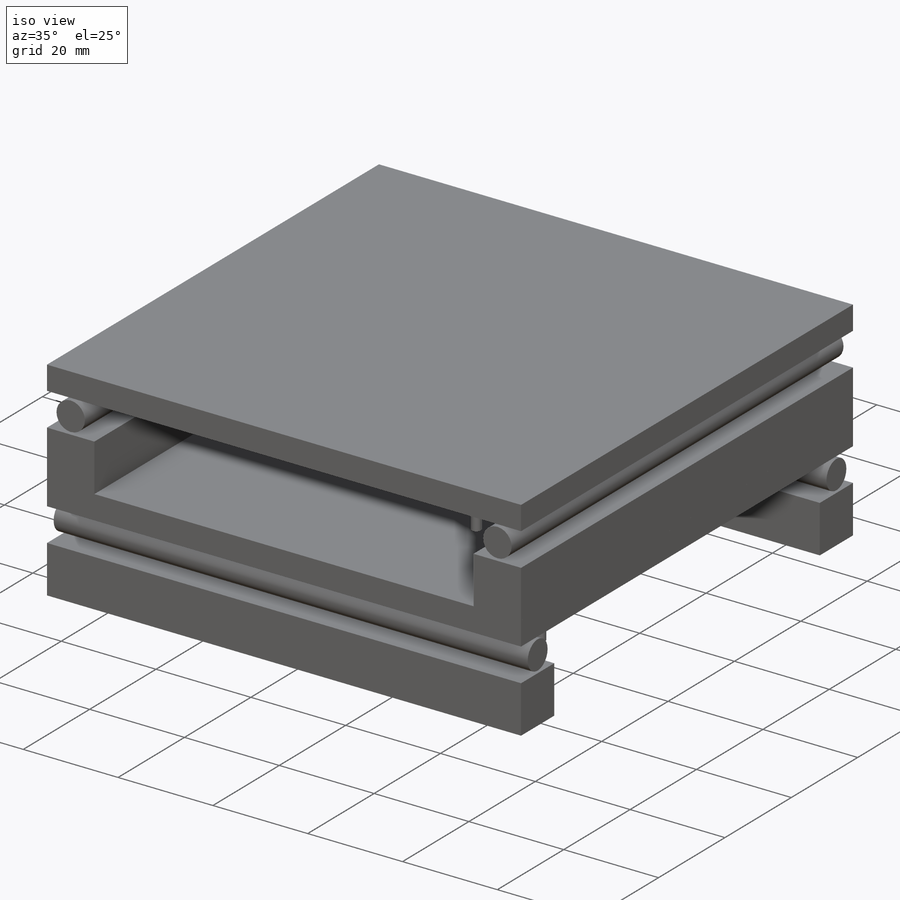
[diagram: iso view]
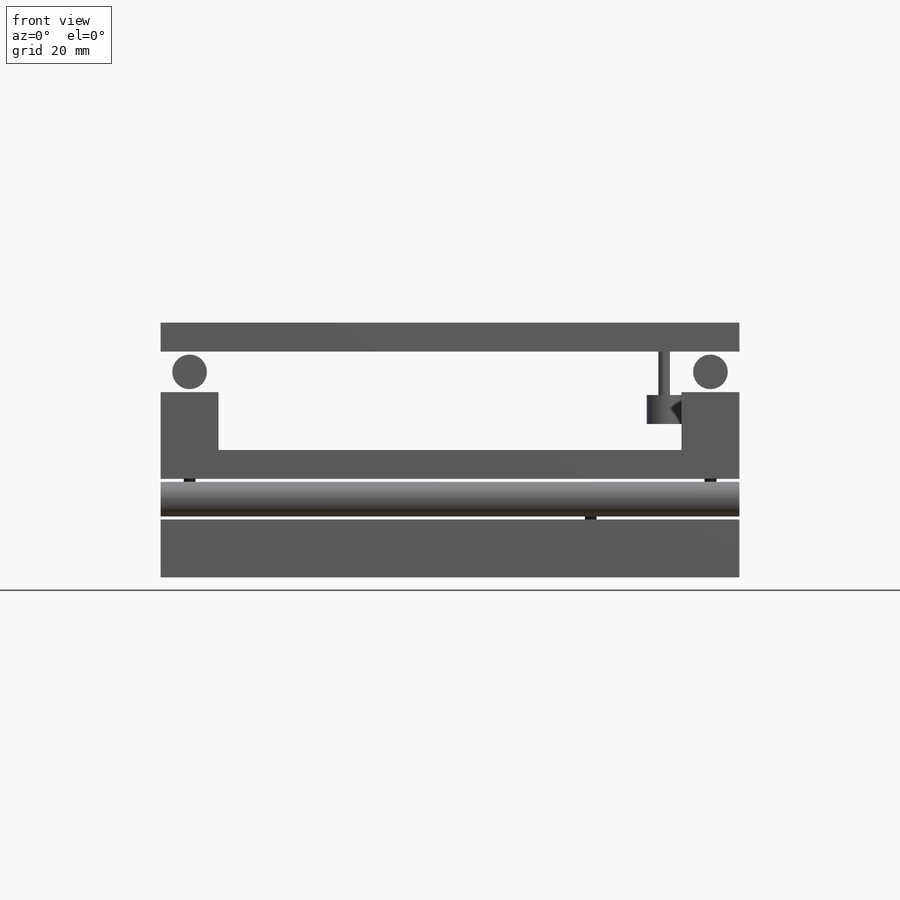
[diagram: front view]
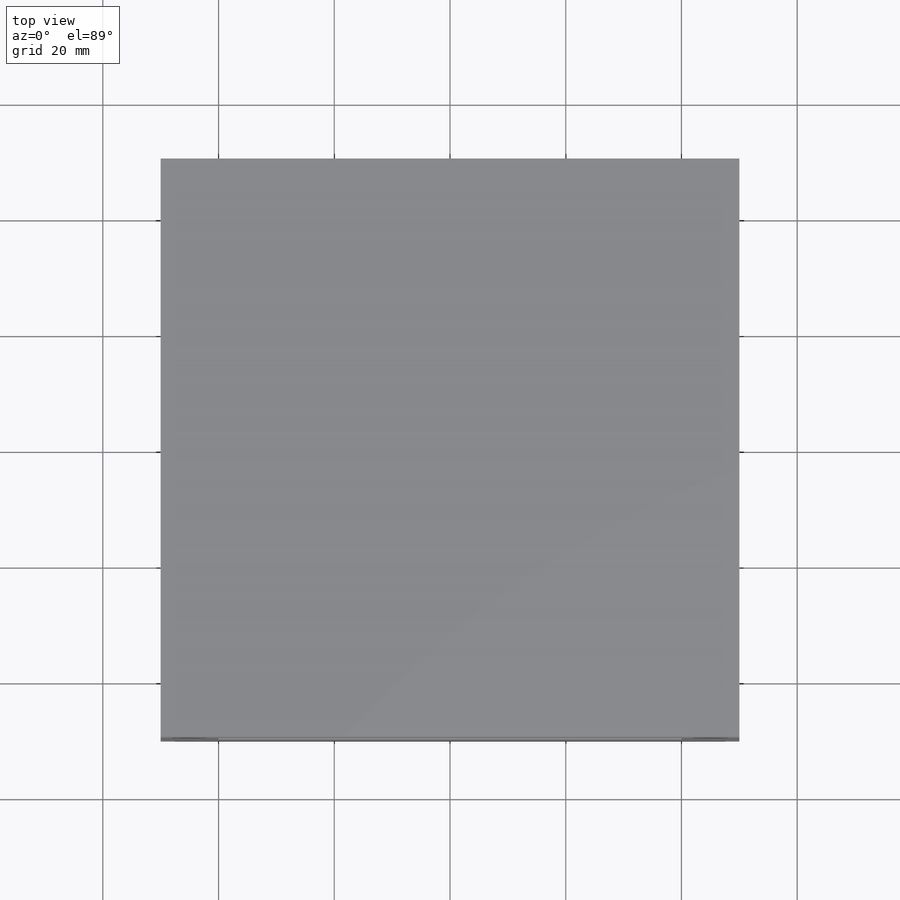
[diagram: top view]
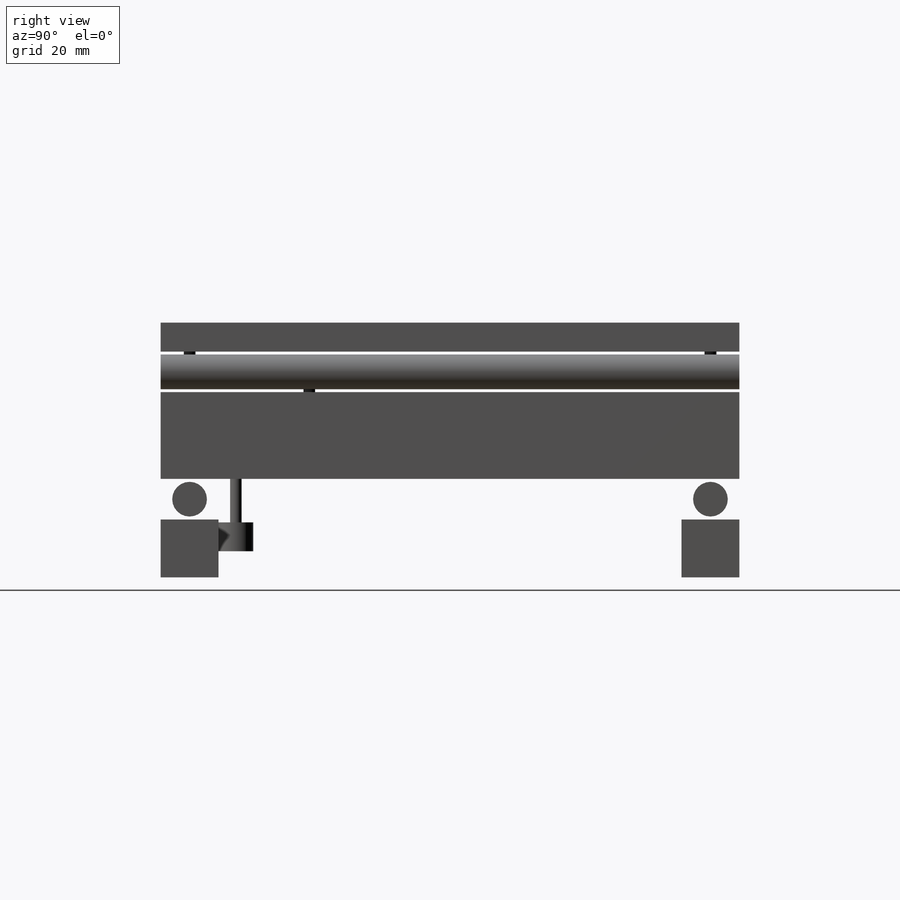
[diagram: right view]
SOLIDWORKS PART (.sldprt)
format: sldprt  version: not decoded by parser v0  size: 244,224 bytes
history: native  units: mm
features: delete_body x6, sketch x5, extrude x5, material x1, plane x1, pattern_linear x1, mirror x1 (+16 scaffold rows collapsed)
feature tree (36):
  scaffold x16  (default folders/planes/origin — collapsed)
  material  "Material <not specified>"
  sketch  "Sketch1"  dims[D1=100.0mm D2=100.0mm D3=10.0mm D4=10.0mm D5=0.0mm D6=80.0mm D7=40.0mm D8=0.0mm]
  extrude  "Boss-Extrude1"  Depth=10mm
  sketch  "Sketch2"  dims[c1.D1=6.0mm c1.D2=6.0mm c1.D8=6.0mm c1.D10=6.0mm c1.D3=3.5mm c1.D4=3.5mm c1.D5=5.0mm c1.D6=3.0mm c2.D5=5.0mm c2.D6=3.5mm c2.D7=0.0mm c2.D8=5.0mm c2.D9=0.0mm c2.D10=5.0mm]
  extrude  "Boss-Extrude2"  Depth=100mm
  sketch  "Sketch3"  dims[D1=3.0mm D2=3.0mm D3=5.0mm D4=5.0mm]
  extrude  "Boss-Extrude3"  Depth=5mm
  sketch  "Sketch6"  dims[D1=2.0mm D2=0.0mm]
  extrude  "Boss-Extrude4"  Depth=5mm
  sketch  "Sketch7"  dims[D1=~3.281867mm]
  extrude  "Boss-Extrude5"  Depth=5mm
  plane  "Plane1"
  pattern_linear  "LPattern1"  Count1=2 Count2=1 Spacing1=22mm Spacing2=50mm
  mirror  "Mirror2"
  delete_body  "Body-Delete1"
  delete_body  "Body-Delete2"
  delete_body  "Body-Delete3"
  delete_body  "Body-Delete4"
  delete_body  "Body-Delete5"
  delete_body  "Body-Delete6"
decode coverage: 11 of 18 modeling features carry decoded parameters
note: ~ marks probable driven/reference dimensions
note: suppression state not decoded; provenance and decode notes live in map.json
